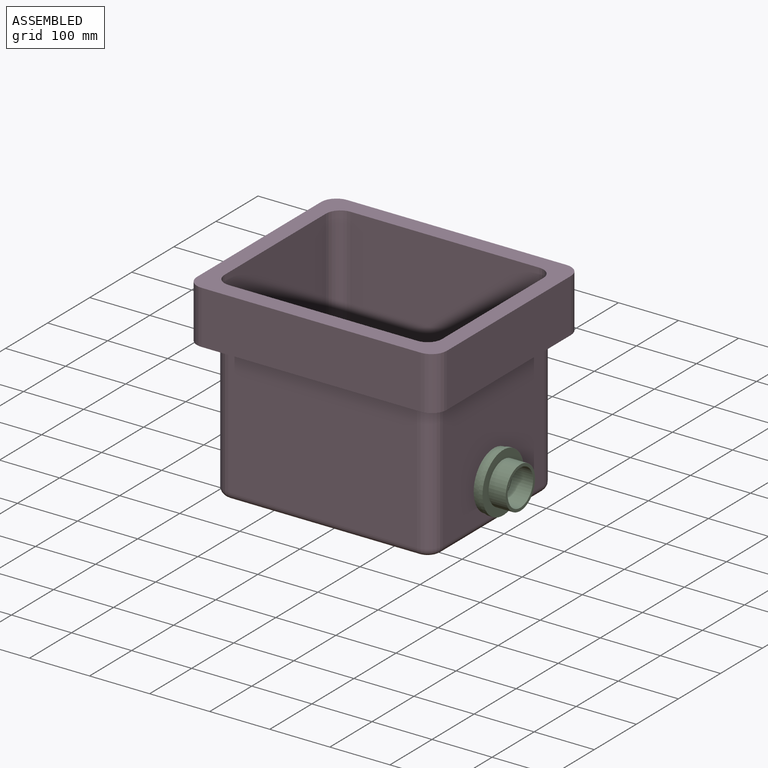
[diagram: assembled view]
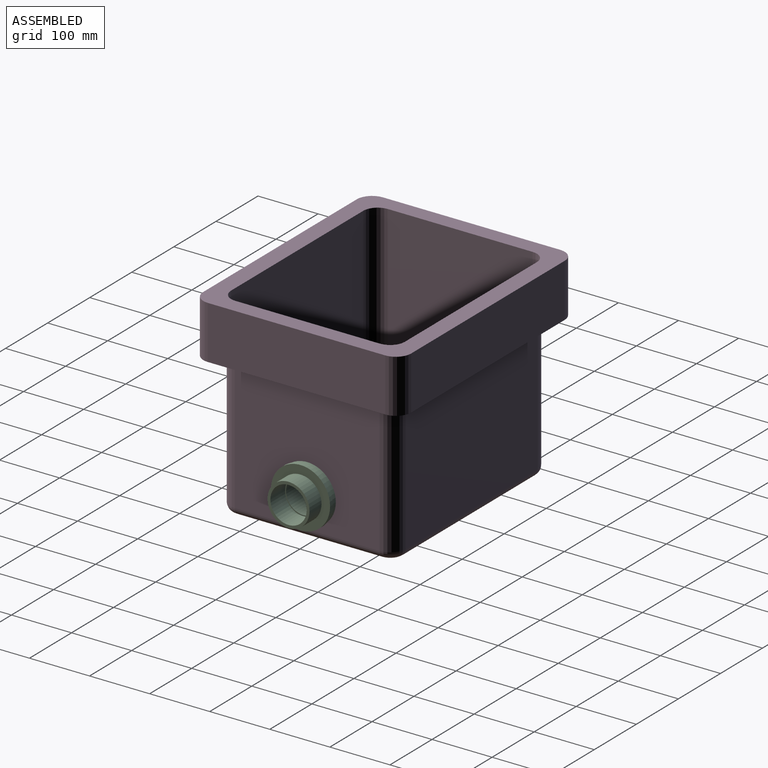
[diagram: assembled view, second angle]
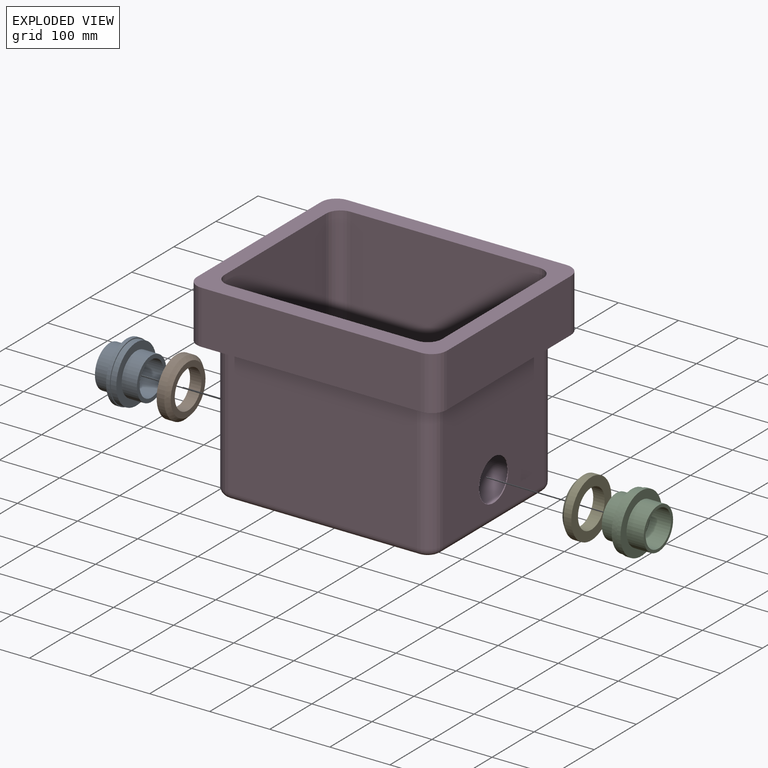
[diagram: exploded view]
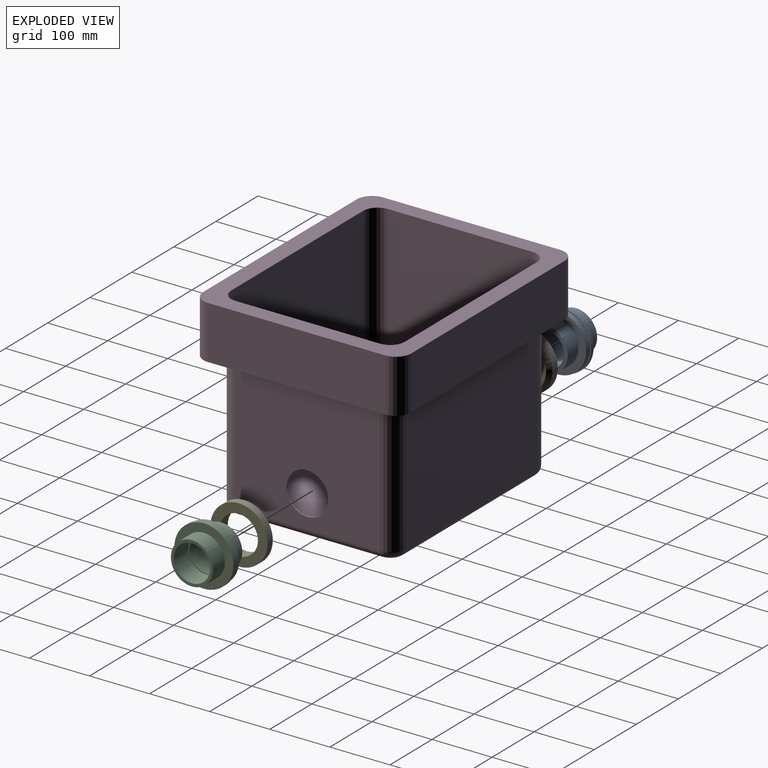
[diagram: exploded view, second angle]
ASSEMBLY  parts=5 mates=8
PART A: 12 faces, bbox 98.4x98.4x69.9 mm
  f0: cylinder r=28.57mm len=57.15mm, axis (0,0,-1), area 6270.5mm2, adj f3,f8
  f1: cylinder r=47.62mm len=95.25mm, axis (0,0,-1), area 2850.2mm2, adj f5,f9
  f2: plane 69.85x69.85mm, normal (0,0,-1), area 973.8mm2, adj f6,f7
  f3: plane 69.85x69.85mm, normal (0,0,1), area 1266.8mm2, adj f0,f4
  f4: cylinder r=34.92mm len=69.85mm, axis (0,0,1), area 5573.8mm2, adj f3,f5
  f5: plane 95.25x95.25mm, normal (0,0,1), area 3293.6mm2, adj f1,f4
  f6: cylinder r=34.92mm len=69.85mm, axis (0,0,-1), area 6270.5mm2, adj f2,f11
  f7: cylinder r=30.16mm len=60.33mm, axis (0,0,-1), area 6618.9mm2, adj f2,f8
  f8: plane 60.33x60.33mm, normal (0,0,-1), area 292.9mm2, adj f0,f7
  f9: plane 98.43x98.43mm, normal (0,0,1), area 483mm2, adj f1,f10
  f10: cylinder r=49.21mm len=98.43mm, axis (0,0,1), area 1963.5mm2, adj f9,f11
  f11: plane 98.43x98.43mm, normal (0,0,-1), area 3776.6mm2, adj f6,f10
PART B: 5 faces, bbox 95.3x95.3x19.1 mm
  f0: cylinder r=31.75mm len=63.5mm, axis (0,0,-1), area 3800.3mm2, adj f2,f3
  f1: cylinder r=47.62mm len=95.25mm, axis (0,0,-1), area 3800.3mm2, adj f3,f4
  f2: plane 82.55x82.55mm, normal (0,0,1), area 2185.2mm2, adj f0,f4
  f3: plane 95.25x95.25mm, normal (0,0,-1), area 3958.7mm2, adj f0,f1
  f4: cone r=41.27mm half-angle=45deg, axis (0,0,-1), area 2508.1mm2, adj f1,f2
PART C: same geometry as A
PART D: 46 faces, bbox 415.9x346.1x323.9 mm
  f0: plane 314.33x222.25mm, normal (0,-1,0), area 69858.7mm2, adj f4,f7,f10,f41
  f1: plane 241.3x222.25mm, normal (1,0,0), area 49796.9mm2, adj f4,f5,f13,f36,f41
  f2: plane 314.33x222.25mm, normal (0,1,0), area 69858.7mm2, adj f5,f6,f17,f41
  f3: plane 241.3x222.25mm, normal (-1,0,0), area 49796.9mm2, adj f6,f7,f14,f35,f41
  f4: cylinder r=25.4mm len=222.25mm, axis (0,0,-1), area 8867.4mm2, adj f0,f1,f11,f41
  f5: cylinder r=25.4mm len=222.25mm, axis (0,0,1), area 8867.4mm2, adj f1,f2,f15,f41
  f6: cylinder r=25.4mm len=222.25mm, axis (0,0,-1), area 8867.4mm2, adj f2,f3,f16,f41
  f7: cylinder r=25.4mm len=222.25mm, axis (0,0,1), area 8867.4mm2, adj f0,f3,f12,f41
  f8: plane 415.93x346.08mm, normal (0,0,1), area 39297.8mm2, adj f18,f19,f20,f21,f23,f24,f25,f26
  f9: plane 339.73x266.7mm, normal (0,0,-1), area 90466.2mm2, adj f10,f11,f12,f13,f14,f15,f16,f17
  f10: cylinder r=12.7mm len=314.33mm, axis (1,0,0), area 6270.5mm2, adj f0,f9,f11,f12
  f11: torus R=12.7mm, axis (0,0,1), area 651.3mm2, adj f4,f9,f10,f13
  f12: torus R=12.7mm, axis (0,0,1), area 651.3mm2, adj f7,f9,f10,f14
  f13: cylinder r=12.7mm len=241.3mm, axis (0,1,0), area 4813.7mm2, adj f1,f9,f11,f15
  f14: cylinder r=12.7mm len=241.3mm, axis (0,-1,0), area 4813.7mm2, adj f3,f9,f12,f16
  f15: torus R=12.7mm, axis (0,0,1), area 651.3mm2, adj f5,f9,f13,f17
  f16: torus R=12.7mm, axis (0,0,1), area 651.3mm2, adj f6,f9,f14,f17
  f17: cylinder r=12.7mm len=314.33mm, axis (-1,0,0), area 6270.5mm2, adj f2,f9,f15,f16
  f18: plane 314.33x311.15mm, normal (0,1,0), area 97802.2mm2, adj f8,f23,f26,f27
  f19: plane 311.15x241.3mm, normal (-1,0,0), area 71248.5mm2, adj f8,f23,f24,f30,f36
  f20: plane 314.33x311.15mm, normal (0,-1,0), area 97802.2mm2, adj f8,f24,f25,f34
  f21: plane 311.15x241.3mm, normal (1,0,0), area 71248.5mm2, adj f8,f25,f26,f31,f35
  f22: plane 339.73x266.7mm, normal (0,0,1), area 90466.2mm2, adj f27,f28,f29,f30,f31,f32,f33,f34
  f23: cylinder r=23.81mm len=311.15mm, axis (0,0,-1), area 11638.4mm2, adj f8,f18,f19,f28
  f24: cylinder r=23.81mm len=311.15mm, axis (0,0,1), area 11638.4mm2, adj f8,f19,f20,f32
  f25: cylinder r=23.81mm len=311.15mm, axis (0,0,-1), area 11638.4mm2, adj f8,f20,f21,f33
  f26: cylinder r=23.81mm len=311.15mm, axis (0,0,1), area 11638.4mm2, adj f8,f18,f21,f29
  f27: cylinder r=11.11mm len=314.33mm, axis (1,0,0), area 5486.7mm2, adj f18,f22,f28,f29
  f28: torus R=12.7mm, axis (0,0,1), area 542.2mm2, adj f22,f23,f27,f30
  f29: torus R=12.7mm, axis (0,0,1), area 542.2mm2, adj f22,f26,f27,f31
  f30: cylinder r=11.11mm len=241.3mm, axis (0,1,0), area 4212mm2, adj f19,f22,f28,f32
  f31: cylinder r=11.11mm len=241.3mm, axis (0,-1,0), area 4212mm2, adj f21,f22,f29,f33
  f32: torus R=12.7mm, axis (0,0,1), area 542.2mm2, adj f22,f24,f30,f34
  f33: torus R=12.7mm, axis (0,0,1), area 542.2mm2, adj f22,f25,f31,f34
  f34: cylinder r=11.11mm len=314.33mm, axis (-1,0,0), area 5486.7mm2, adj f20,f22,f32,f33
  f35: cylinder r=34.92mm len=69.85mm, axis (1,0,0), area 348.4mm2, adj f3,f21
  f36: cylinder r=34.92mm len=69.85mm, axis (1,0,0), area 348.4mm2, adj f1,f19
  f37: plane 295.28x88.9mm, normal (1,0,0), area 26249.9mm2, adj f8,f41,f42,f45
  f38: plane 365.13x88.9mm, normal (0,1,0), area 32459.6mm2, adj f8,f41,f42,f43
  f39: plane 295.28x88.9mm, normal (-1,0,0), area 26249.9mm2, adj f8,f41,f43,f44
  f40: plane 365.13x88.9mm, normal (0,-1,0), area 32459.6mm2, adj f8,f41,f44,f45
  f41: plane 415.93x346.08mm, normal (0,0,-1), area 37288.2mm2, adj f0,f1,f2,f3,f4,f5,f6,f7
  f42: cylinder r=25.4mm len=88.9mm, axis (0,0,-1), area 3547mm2, adj f8,f37,f38,f41
  f43: cylinder r=25.4mm len=88.9mm, axis (0,0,1), area 3547mm2, adj f8,f38,f39,f41
  f44: cylinder r=25.4mm len=88.9mm, axis (0,0,-1), area 3547mm2, adj f8,f39,f40,f41
  f45: cylinder r=25.4mm len=88.9mm, axis (0,0,1), area 3547mm2, adj f8,f37,f40,f41
PART E: same geometry as B
PLACE A rot(axis=(0.58,0.58,0.58),120deg) t=(-198.44,0,66.67)mm
PLACE B rot(axis=(-0.71,0,-0.71),180deg) t=(-180.98,0,66.67)mm
PLACE C rot(axis=(0.58,-0.58,-0.58),120deg) t=(198.44,0,66.67)mm
PLACE D at identity
PLACE E rot(axis=(-0.58,-0.58,0.58),120deg) t=(180.98,0,66.67)mm
MATE cylindrical C.f4 <-> D.f35  axis (-1,0,0) through (169.86,0,66.67)mm
MATE slider B.f0 <-> A.f4  axis (-1,0,0) through (-171.45,0,66.67)mm
MATE slider E.f0 <-> C.f4  axis (1,0,0) through (171.45,0,66.67)mm
MATE fastened A.f7 <-> D.f35  axis (1,0,0) through (-182.56,0,66.67)mm
MATE slider A.f4 <-> D.f35  axis (1,0,0) through (-169.86,0,66.67)mm
MATE fastened B.f1 <-> D.f35  axis (-1,0,0) through (-180.98,0,66.67)mm
MATE fastened E.f1 <-> D.f35  axis (1,0,0) through (180.98,0,66.67)mm
MATE fastened C.f7 <-> D.f35  axis (-1,0,0) through (182.56,0,66.67)mm
